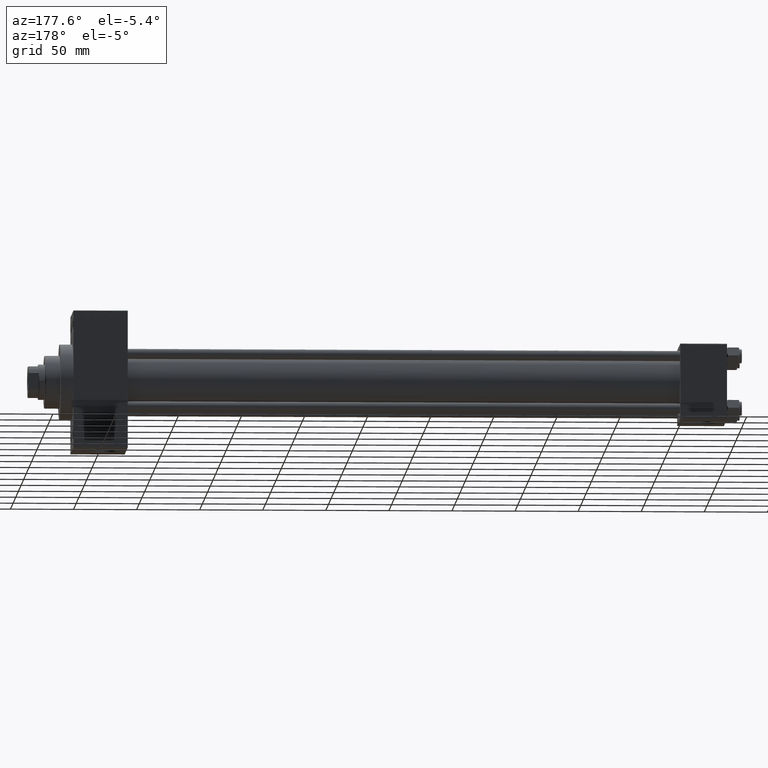
[diagram: clean part render]
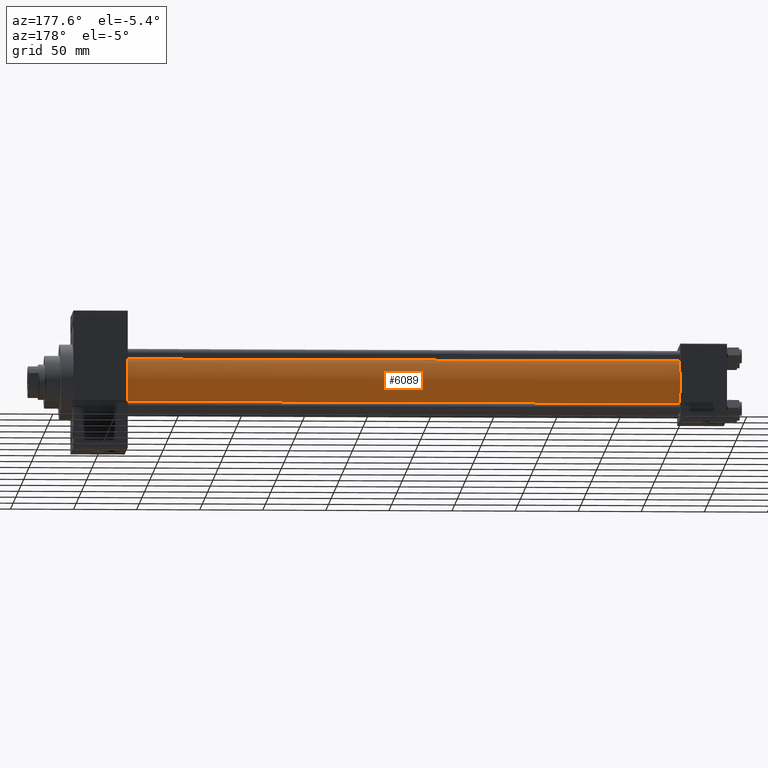
[diagram: same view with one face highlighted and labeled with its STEP entity id]
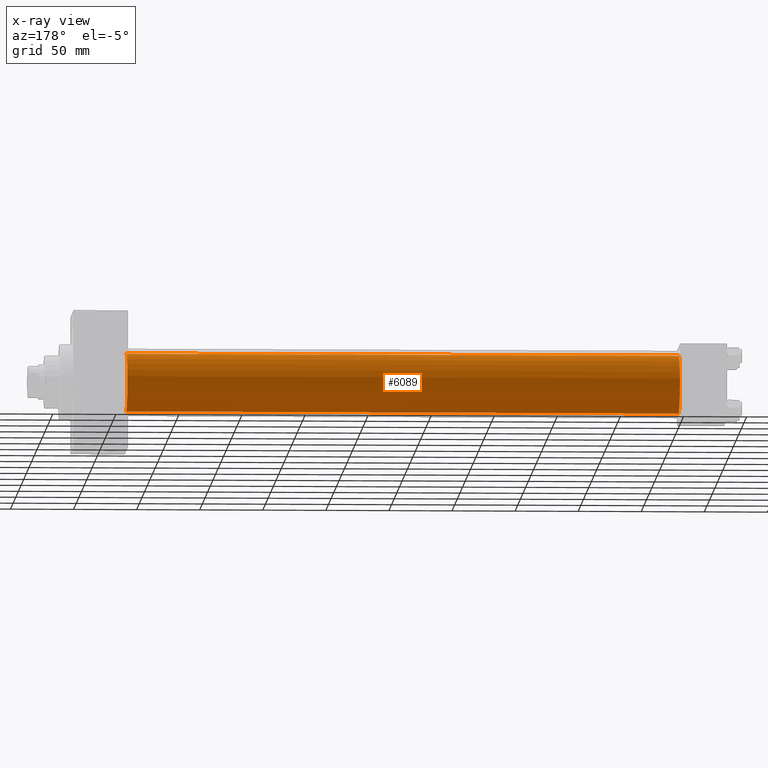
[diagram: x-ray of the same camera — body ghosted, the highlighted face saturated]
A machine part, auxiliary view. The second image highlights one B-rep face of the part: STEP entity #6089.
The next image is the same camera in x-ray: the body ghosted, the highlighted face saturated — about 0% of this face is hidden behind the body in this view.
In plain terms, the highlighted cylindrical surface (edge-blend (fillet) strip) has radius 23 mm, axis along (-1, -0, -0).
Its self-contained STEP definition (entity closure, byte-faithful):
#874 = CARTESIAN_POINT ( 'NONE',  ( 36.99999999999997868, -2.602085213965210642E-15, 23.00000000000000000 ) ) ;
#4131 = FACE_OUTER_BOUND ( 'NONE', #6886, .T. ) ;
#5330 = EDGE_CURVE ( 'NONE', #41237, #22931, #10392, .T. ) ;
#6089 = ADVANCED_FACE ( 'NONE', ( #4131 ), #18851, .T. ) ;
#6772 = ORIENTED_EDGE ( 'NONE', *, *, #5330, .F. ) ;
#6886 = EDGE_LOOP ( 'NONE', ( #29361, #36974, #10348, #6772 ) ) ;
#7405 = VECTOR ( 'NONE', #47524, 1000.000000000000000 ) ;
#8046 = CARTESIAN_POINT ( 'NONE',  ( 475.0000000000000000, 2.146024240737016609E-16, -23.00000000000000000 ) ) ;
#8070 = EDGE_CURVE ( 'NONE', #16137, #17756, #47594, .T. ) ;
#8801 = CIRCLE ( 'NONE', #31118, 23.00000000000000000 ) ;
#8857 = CARTESIAN_POINT ( 'NONE',  ( 36.99999999999997868, 2.146024240737016609E-16, -23.00000000000000000 ) ) ;
#9053 = VECTOR ( 'NONE', #43601, 1000.000000000000000 ) ;
#9228 = CARTESIAN_POINT ( 'NONE',  ( 475.0000000000000000, 2.146024240737016609E-16, -23.00000000000000000 ) ) ;
#10006 = CARTESIAN_POINT ( 'NONE',  ( 36.99999999999997868, -2.602085213965210642E-15, 0.000000000000000000 ) ) ;
#10348 = ORIENTED_EDGE ( 'NONE', *, *, #42640, .T. ) ;
#10392 = LINE ( 'NONE', #14380, #7405 ) ;
#10609 = AXIS2_PLACEMENT_3D ( 'NONE', #33138, #29152, #48079 ) ;
#14380 = CARTESIAN_POINT ( 'NONE',  ( 475.0000000000000000, -2.602085213965210642E-15, 23.00000000000000000 ) ) ;
#16137 = VERTEX_POINT ( 'NONE', #8046 ) ;
#16887 = DIRECTION ( 'NONE',  ( 0.000000000000000000, 0.000000000000000000, -1.000000000000000000 ) ) ;
#17488 = DIRECTION ( 'NONE',  ( 1.000000000000000000, -0.000000000000000000, 0.000000000000000000 ) ) ;
#17756 = VERTEX_POINT ( 'NONE', #8857 ) ;
#18851 = CYLINDRICAL_SURFACE ( 'NONE', #10609, 23.00000000000000000 ) ;
#21091 = AXIS2_PLACEMENT_3D ( 'NONE', #29087, #28349, #16887 ) ;
#22699 = EDGE_CURVE ( 'NONE', #16137, #41237, #38604, .T. ) ;
#22931 = VERTEX_POINT ( 'NONE', #874 ) ;
#24569 = CARTESIAN_POINT ( 'NONE',  ( 475.0000000000000000, -2.602085213965210642E-15, 23.00000000000000000 ) ) ;
#28349 = DIRECTION ( 'NONE',  ( 1.000000000000000000, 0.000000000000000000, 0.000000000000000000 ) ) ;
#29087 = CARTESIAN_POINT ( 'NONE',  ( 475.0000000000000000, -2.602085213965210642E-15, 0.000000000000000000 ) ) ;
#29152 = DIRECTION ( 'NONE',  ( -1.000000000000000000, -0.000000000000000000, -0.000000000000000000 ) ) ;
#29361 = ORIENTED_EDGE ( 'NONE', *, *, #22699, .F. ) ;
#31118 = AXIS2_PLACEMENT_3D ( 'NONE', #10006, #17488, #43393 ) ;
#33138 = CARTESIAN_POINT ( 'NONE',  ( 475.0000000000000000, -2.602085213965210642E-15, 0.000000000000000000 ) ) ;
#36974 = ORIENTED_EDGE ( 'NONE', *, *, #8070, .T. ) ;
#38604 = CIRCLE ( 'NONE', #21091, 23.00000000000000000 ) ;
#41237 = VERTEX_POINT ( 'NONE', #24569 ) ;
#42640 = EDGE_CURVE ( 'NONE', #17756, #22931, #8801, .T. ) ;
#43393 = DIRECTION ( 'NONE',  ( 0.000000000000000000, 0.000000000000000000, 1.000000000000000000 ) ) ;
#43601 = DIRECTION ( 'NONE',  ( -1.000000000000000000, -0.000000000000000000, -0.000000000000000000 ) ) ;
#47524 = DIRECTION ( 'NONE',  ( -1.000000000000000000, -0.000000000000000000, -0.000000000000000000 ) ) ;
#47594 = LINE ( 'NONE', #9228, #9053 ) ;
#48079 = DIRECTION ( 'NONE',  ( 0.000000000000000000, 0.000000000000000000, 1.000000000000000000 ) ) ;